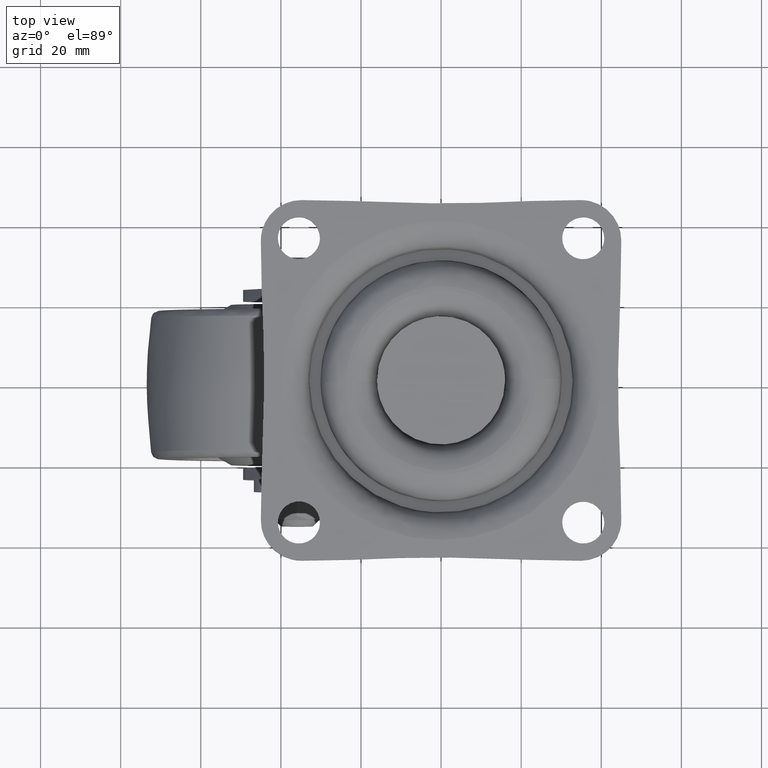
[diagram: clean part render]
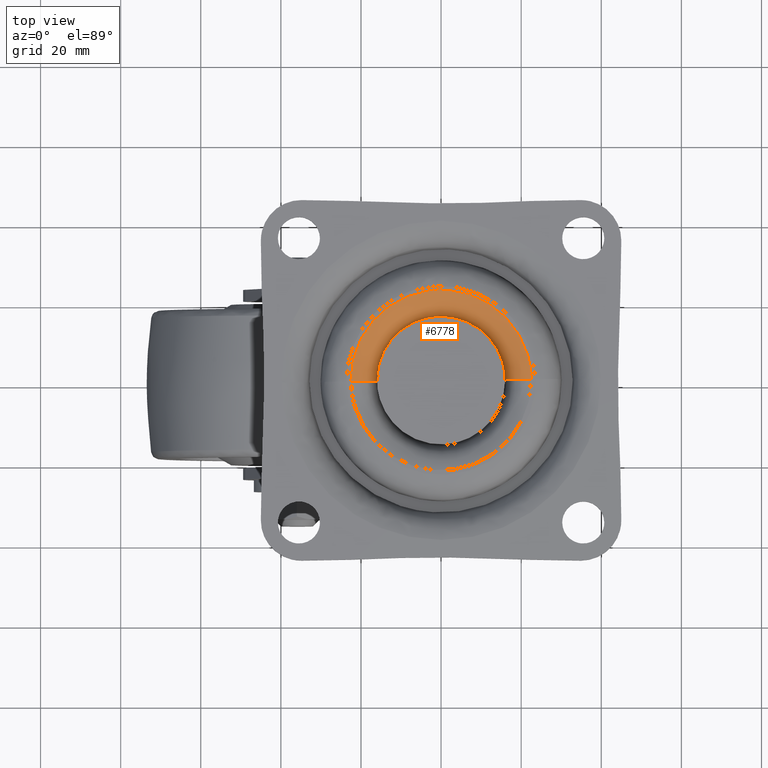
[diagram: same view with one face highlighted and labeled with its STEP entity id]
A machine part, top view. The second image highlights one B-rep face of the part: STEP entity #6778.
In plain terms, the highlighted face is a freeform B-spline surface patch.
Its self-contained STEP definition (entity closure, byte-faithful):
#6285=CARTESIAN_POINT('',(15.998736707260280,0.201056638195739,-6.499999999698154));
#6286=VERTEX_POINT('',#6285);
#6300=CARTESIAN_POINT('',(-0.139614186200597,15.999390859620361,-6.499999999849279));
#6301=VERTEX_POINT('',#6300);
#6302=CARTESIAN_POINT('',(15.998736707260274,0.201056638195739,-6.499999999698154));
#6303=CARTESIAN_POINT('',(15.800190878455707,15.999999999998328,-6.499999999699008));
#6304=CARTESIAN_POINT('',(2.784507E-014,15.999999999996639,-6.499999999847963));
#6305=CARTESIAN_POINT('',(-0.069808421948047,15.999999999996636,-6.499999999848621));
#6306=CARTESIAN_POINT('',(-0.139614186200597,15.999390859620366,-6.499999999849279));
#6314=(BOUNDED_CURVE()B_SPLINE_CURVE(2,(#6302,#6303,#6304,#6305,#6306),.UNSPECIFIED.,.F.,.U.)B_SPLINE_CURVE_WITH_KNOTS((3,2,3),(0.502215704078954,0.750000000000000,0.751539780038470),.UNSPECIFIED.)CURVE()GEOMETRIC_REPRESENTATION_ITEM()RATIONAL_B_SPLINE_CURVE((0.994854295642441,0.709702639985040,1.0,0.998196035473072,0.996414292614693))REPRESENTATION_ITEM(''));
#6315=EDGE_CURVE('',#6286,#6301,#6314,.T.);
#6350=CARTESIAN_POINT('',(-15.998736707260271,-0.201056638195735,-6.499999999698153));
#6351=VERTEX_POINT('',#6350);
#6371=CARTESIAN_POINT('',(-16.0,0.0,-6.500000000000000));
#6372=VERTEX_POINT('',#6371);
#6373=CARTESIAN_POINT('',(-0.139614186200597,15.999390859620366,-6.499999999849279));
#6374=CARTESIAN_POINT('',(-15.999999999999982,15.860989661873354,-6.499999999998977));
#6375=CARTESIAN_POINT('',(-16.0,0.0,-6.500000000000000));
#6383=(BOUNDED_CURVE()B_SPLINE_CURVE(2,(#6373,#6374,#6375),.UNSPECIFIED.,.F.,.U.)B_SPLINE_CURVE_WITH_KNOTS((3,3),(0.751539780038470,1.0),.UNSPECIFIED.)CURVE()GEOMETRIC_REPRESENTATION_ITEM()RATIONAL_B_SPLINE_CURVE((0.996414292614693,0.708910745713476,1.0))REPRESENTATION_ITEM(''));
#6384=EDGE_CURVE('',#6301,#6372,#6383,.T.);
#6386=CARTESIAN_POINT('',(-16.0,0.0,-6.500000000000000));
#6387=CARTESIAN_POINT('',(-15.999999999999995,-0.100532287901287,-6.499999999849076));
#6388=CARTESIAN_POINT('',(-15.998736707260271,-0.201056638195735,-6.499999999698153));
#6396=(BOUNDED_CURVE()B_SPLINE_CURVE(2,(#6386,#6387,#6388),.UNSPECIFIED.,.F.,.U.)B_SPLINE_CURVE_WITH_KNOTS((3,3),(0.0,0.002215704078954),.UNSPECIFIED.)CURVE()GEOMETRIC_REPRESENTATION_ITEM()RATIONAL_B_SPLINE_CURVE((1.0,0.997404141201508,0.994854295642441))REPRESENTATION_ITEM(''));
#6397=EDGE_CURVE('',#6372,#6351,#6396,.T.);
#6623=CARTESIAN_POINT('',(-22.498223494148370,-0.282735897588697,-1.131159E-015));
#6624=VERTEX_POINT('',#6623);
#6625=CARTESIAN_POINT('',(-15.998736707260271,-0.201056638195735,-6.499999999698153));
#6626=CARTESIAN_POINT('',(-15.998736707561113,-0.201056638277845,-4.347808E-010));
#6627=CARTESIAN_POINT('',(-22.498223494148370,-0.282735897588697,-1.131159E-015));
#6635=(BOUNDED_CURVE()B_SPLINE_CURVE(2,(#6625,#6626,#6627),.UNSPECIFIED.,.F.,.U.)B_SPLINE_CURVE_WITH_KNOTS((3,3),(-1.725134643234193,-0.274865356786780),.UNSPECIFIED.)CURVE()GEOMETRIC_REPRESENTATION_ITEM()RATIONAL_B_SPLINE_CURVE((0.883342149636068,0.624617224148313,0.883342149628585))REPRESENTATION_ITEM(''));
#6636=EDGE_CURVE('',#6351,#6624,#6635,.T.);
#6668=CARTESIAN_POINT('',(22.498223494148359,0.282735897588695,-1.131159E-015));
#6669=VERTEX_POINT('',#6668);
#6683=CARTESIAN_POINT('',(15.998736707260282,0.201056638195739,-6.499999999698154));
#6684=CARTESIAN_POINT('',(15.998736707561113,0.201056638277846,-4.347901E-010));
#6685=CARTESIAN_POINT('',(22.498223494148359,0.282735897588695,-1.131159E-015));
#6693=(BOUNDED_CURVE()B_SPLINE_CURVE(2,(#6683,#6684,#6685),.UNSPECIFIED.,.F.,.U.)B_SPLINE_CURVE_WITH_KNOTS((3,3),(-1.725134643234193,-0.274865356786782),.UNSPECIFIED.)CURVE()GEOMETRIC_REPRESENTATION_ITEM()RATIONAL_B_SPLINE_CURVE((0.883342149636068,0.624617224148313,0.883342149628585))REPRESENTATION_ITEM(''));
#6694=EDGE_CURVE('',#6286,#6669,#6693,.T.);
#6699=CARTESIAN_POINT('',(-16.008843174080763,-0.648966679501333,-6.951991209236103));
#6700=CARTESIAN_POINT('',(-16.011639998253834,-0.426414198882743,-6.951991209236103));
#6701=CARTESIAN_POINT('',(-16.215723943027417,15.813215235493171,-6.951991209236102));
#6702=CARTESIAN_POINT('',(-0.201254353767121,16.014469589260294,-6.951991209236102));
#6703=CARTESIAN_POINT('',(15.813215235493171,16.215723943027417,-6.951991209236102));
#6704=CARTESIAN_POINT('',(16.017299180265411,-0.023905491240839,-6.951991209236104));
#6705=CARTESIAN_POINT('',(16.020096004437153,-0.246457971754253,-6.951991209236102));
#6706=CARTESIAN_POINT('',(-15.489341233927036,-0.627907103526355,0.503991631115400));
#6707=CARTESIAN_POINT('',(-15.492047298538758,-0.412576659141749,0.503991631115399));
#6708=CARTESIAN_POINT('',(-15.689508528347165,15.300061604991768,0.503991631115400));
#6709=CARTESIAN_POINT('',(-0.194723461677699,15.494785066669470,0.503991631115399));
#6710=CARTESIAN_POINT('',(15.300061604991768,15.689508528347167,0.503991631115400));
#6711=CARTESIAN_POINT('',(15.497522834798874,-0.023129735682183,0.503991631115399));
#6712=CARTESIAN_POINT('',(15.500228899409315,-0.238460179965026,0.503991631115399));
#6713=CARTESIAN_POINT('',(-22.942116038931797,-0.930027779310466,-0.015734137043538));
#6714=CARTESIAN_POINT('',(-22.946124140205651,-0.611090003508500,-0.015734137043538));
#6715=CARTESIAN_POINT('',(-23.238594838541875,22.661763560071869,-0.015734137043538));
#6716=CARTESIAN_POINT('',(-0.288415639235010,22.950179199306866,-0.015734137043538));
#6717=CARTESIAN_POINT('',(22.661763560071869,23.238594838541875,-0.015734137043538));
#6718=CARTESIAN_POINT('',(22.954234258406153,-0.034258724884191,-0.015734137043538));
#6719=CARTESIAN_POINT('',(22.958242359678117,-0.353196500535430,-0.015734137043538));
#6727=(BOUNDED_SURFACE()B_SPLINE_SURFACE(2,2,((#6699,#6706,#6713),(#6700,#6707,#6714),(#6701,#6708,#6715),(#6702,#6709,#6716),(#6703,#6710,#6717),(#6704,#6711,#6718),(#6705,#6712,#6719)),.UNSPECIFIED.,.F.,.F.,.U.)B_SPLINE_SURFACE_WITH_KNOTS((3,1,2,1,3),(3,3),(0.0,0.760562089707979,38.788666561957157,76.816771034206340,77.577333123548527),(0.0,11.847744956306920),.UNSPECIFIED.)GEOMETRIC_REPRESENTATION_ITEM()RATIONAL_B_SPLINE_SURFACE(((0.921146729408638,0.604479481454856,0.921146741241271),(0.915813262249817,0.600979527148347,0.915813274013940),(0.643806437242182,0.422481857576905,0.643806445512228),(0.910479795090997,0.597479572841838,0.910479806786608),(0.643806437242182,0.422481857576905,0.643806445512228),(0.915813262247252,0.600979527146663,0.915813274011374),(0.921146729403507,0.604479481451489,0.921146741236141)))REPRESENTATION_ITEM('')SURFACE());
#6728=ORIENTED_EDGE('',*,*,#6384,.F.);
#6729=ORIENTED_EDGE('',*,*,#6315,.F.);
#6730=ORIENTED_EDGE('',*,*,#6694,.T.);
#6731=CARTESIAN_POINT('',(-22.500000000000000,0.0,0.0));
#6732=VERTEX_POINT('',#6731);
#6733=CARTESIAN_POINT('',(-22.500000000000000,0.0,0.0));
#6734=CARTESIAN_POINT('',(-22.500075355940659,1.191716604133123,-1.863276E-019));
#6735=CARTESIAN_POINT('',(-22.324781855608869,3.391767712041709,-4.940138E-018));
#6736=CARTESIAN_POINT('',(-21.500961042988919,6.973396941691697,-2.621411E-017));
#6737=CARTESIAN_POINT('',(-20.184168263151012,10.166629249971630,-5.981851E-017));
#6738=CARTESIAN_POINT('',(-18.302096761466320,13.215013981780279,-1.076094E-016));
#6739=CARTESIAN_POINT('',(-16.391756698542430,15.512554005451140,-1.559922E-016));
#6740=CARTESIAN_POINT('',(-14.260972488805960,17.468668761995328,-2.098624E-016));
#6741=CARTESIAN_POINT('',(-11.732053294352360,19.299506754938349,-2.737207E-016));
#6742=CARTESIAN_POINT('',(-8.583267362365142,20.926313117446540,-3.531283E-016));
#6743=CARTESIAN_POINT('',(-5.286706975635012,21.944592441114889,-4.361543E-016));
#6744=CARTESIAN_POINT('',(-2.070742069927850,22.470554344575572,-5.170767E-016));
#6745=CARTESIAN_POINT('',(1.008444503433263,22.565270728669859,-5.944928E-016));
#6746=CARTESIAN_POINT('',(4.110373753353311,22.184704425881499,-6.724055E-016));
#6747=CARTESIAN_POINT('',(6.645334376830764,21.536314642647490,-7.360241E-016));
#6748=CARTESIAN_POINT('',(8.928698384017592,20.699638607649280,-7.932886E-016));
#6749=CARTESIAN_POINT('',(11.358616232717500,19.501299576098440,-8.541798E-016));
#6750=CARTESIAN_POINT('',(14.141536613176950,17.627410989504931,-9.238378E-016));
#6751=CARTESIAN_POINT('',(16.957741297194239,14.979815961216129,-9.942102E-016));
#6752=CARTESIAN_POINT('',(19.054508608012160,12.121143081878889,-1.046465E-015));
#6753=CARTESIAN_POINT('',(20.641488486942428,9.118288049217608,-1.085882E-015));
#6754=CARTESIAN_POINT('',(21.711785029020369,6.229497654547965,-1.112330E-015));
#6755=CARTESIAN_POINT('',(22.347981551955488,3.122832831127309,-1.127831E-015));
#6756=CARTESIAN_POINT('',(22.487297646435771,1.153517219285208,-1.131022E-015));
#6757=CARTESIAN_POINT('',(22.498223494148359,0.282735897588695,-1.131159E-015));
#6758=B_SPLINE_CURVE_WITH_KNOTS('',3,(#6733,#6734,#6735,#6736,#6737,#6738,#6739,#6740,#6741,#6742,#6743,#6744,#6745,#6746,#6747,#6748,#6749,#6750,#6751,#6752,#6753,#6754,#6755,#6756,#6757),.UNSPECIFIED.,.F.,.U.,(4,1,1,1,1,1,1,1,1,1,1,1,1,1,1,1,1,1,1,1,1,1,4),(0.000000153108104,3.575141109144326,6.600264378117046,11.000500676172740,13.888121176069550,17.325790117668639,19.938415124206209,22.551048032146870,26.676259905780899,30.526448943212120,32.864017779732322,36.439120358893533,39.739293798593579,42.214408863428979,44.276970035729988,47.027124732892332,50.327276037082150,54.314973926846520,58.577680893148042,60.915310739526703,64.490461974023063,67.790646311711711,70.403200926661029),.UNSPECIFIED.);
#6759=EDGE_CURVE('',#6732,#6669,#6758,.T.);
#6760=ORIENTED_EDGE('',*,*,#6759,.F.);
#6761=CARTESIAN_POINT('',(-22.498223494148363,-0.282735897588697,-1.131159E-015));
#6762=CARTESIAN_POINT('',(-22.499999999782627,-0.141373529924165,-5.655797E-016));
#6763=CARTESIAN_POINT('',(-22.500000000000000,0.0,0.0));
#6771=(BOUNDED_CURVE()B_SPLINE_CURVE(2,(#6761,#6762,#6763),.UNSPECIFIED.,.F.,.U.)B_SPLINE_CURVE_WITH_KNOTS((3,3),(0.997784295920018,1.0),.UNSPECIFIED.)CURVE()GEOMETRIC_REPRESENTATION_ITEM()RATIONAL_B_SPLINE_CURVE((0.994854295640077,0.997404141200304,1.0))REPRESENTATION_ITEM(''));
#6772=EDGE_CURVE('',#6624,#6732,#6771,.T.);
#6773=ORIENTED_EDGE('',*,*,#6772,.F.);
#6774=ORIENTED_EDGE('',*,*,#6636,.F.);
#6775=ORIENTED_EDGE('',*,*,#6397,.F.);
#6776=EDGE_LOOP('',(#6728,#6729,#6730,#6760,#6773,#6774,#6775));
#6777=FACE_OUTER_BOUND('',#6776,.T.);
#6778=ADVANCED_FACE('',(#6777),#6727,.T.);